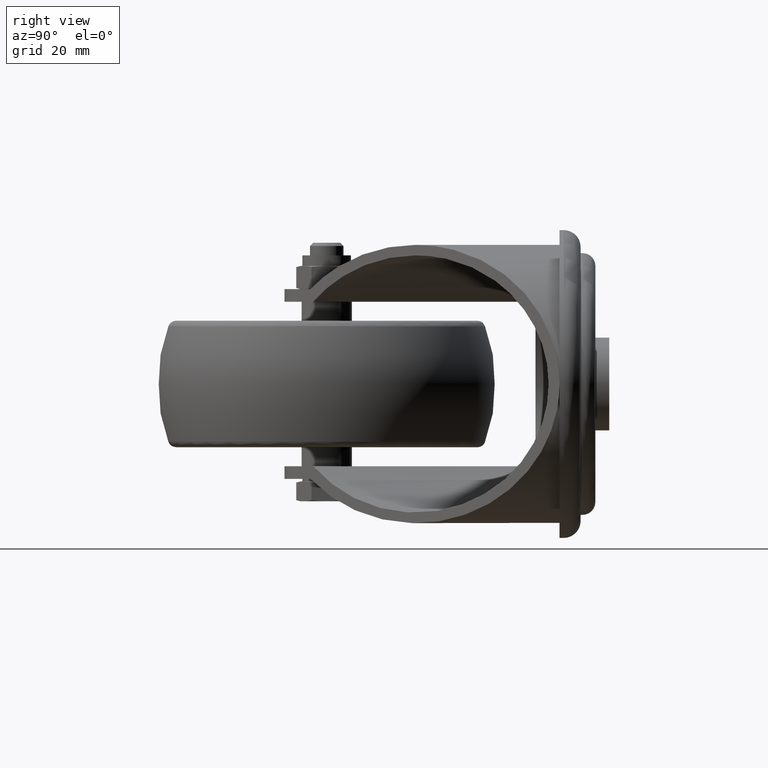
[diagram: clean part render]
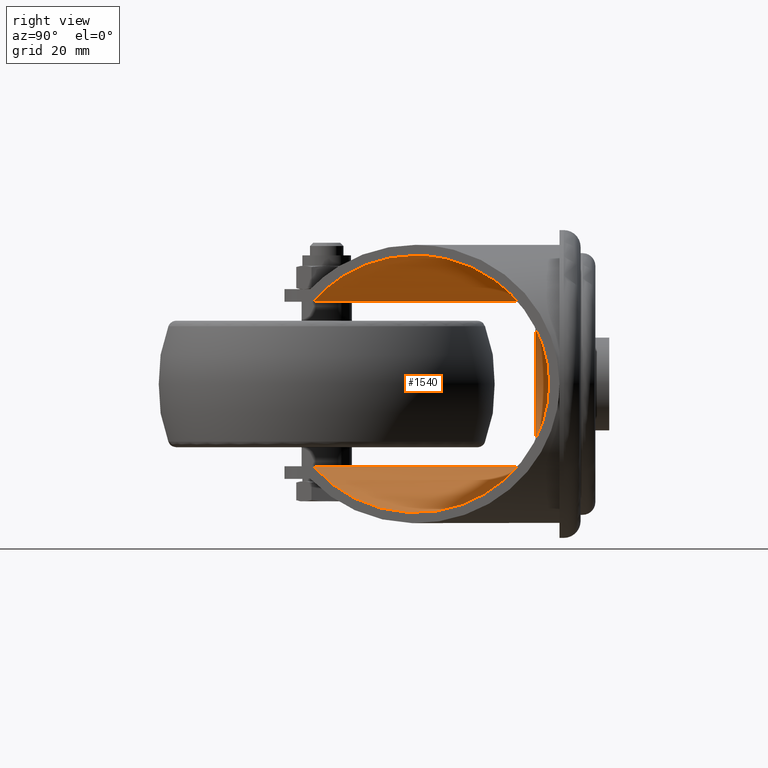
[diagram: same view with one face highlighted and labeled with its STEP entity id]
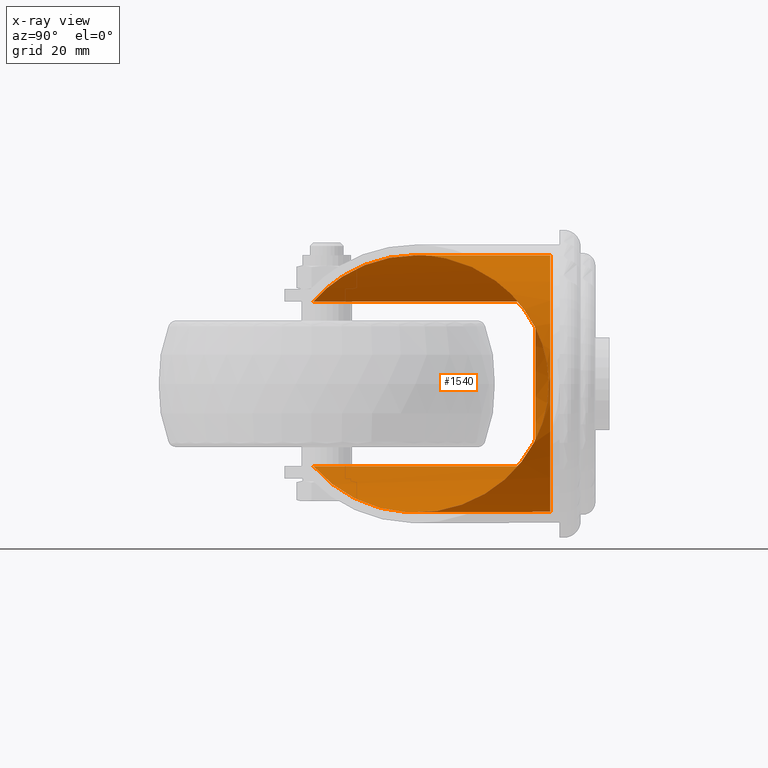
[diagram: x-ray of the same camera — body ghosted, the highlighted face saturated]
A machine part, right view. The second image highlights one B-rep face of the part: STEP entity #1540.
The next image is the same camera in x-ray: the body ghosted, the highlighted face saturated — about 0% of this face is hidden behind the body in this view.
In plain terms, the highlighted cylindrical surface (bore or boss wall) has radius 30.5 mm, axis along (0, -1, 0).
Its self-contained STEP definition (entity closure, byte-faithful):
#221=FACE_OUTER_BOUND('',#327,.T.);
#327=EDGE_LOOP('',(#1102,#1103,#1104,#1105,#1106,#1107,#1108,#1109));
#452=CIRCLE('',#1772,30.5);
#453=CIRCLE('',#1773,30.5);
#550=ELLIPSE('',#1757,43.8715844141241,30.5);
#551=ELLIPSE('',#1758,43.8715844141241,30.5);
#577=LINE('',#2565,#645);
#578=LINE('',#2567,#646);
#579=LINE('',#2570,#647);
#645=VECTOR('',#2048,30.5);
#646=VECTOR('',#2049,1000.);
#647=VECTOR('',#2052,1000.);
#701=VERTEX_POINT('',#2513);
#702=VERTEX_POINT('',#2515);
#703=VERTEX_POINT('',#2517);
#718=VERTEX_POINT('',#2563);
#719=VERTEX_POINT('',#2566);
#720=VERTEX_POINT('',#2568);
#841=EDGE_CURVE('',#701,#702,#550,.F.);
#842=EDGE_CURVE('',#702,#703,#551,.F.);
#866=EDGE_CURVE('',#718,#718,#452,.T.);
#867=EDGE_CURVE('',#718,#702,#577,.T.);
#868=EDGE_CURVE('',#701,#719,#578,.F.);
#869=EDGE_CURVE('',#719,#720,#453,.T.);
#870=EDGE_CURVE('',#720,#703,#579,.T.);
#1102=ORIENTED_EDGE('',*,*,#866,.F.);
#1103=ORIENTED_EDGE('',*,*,#867,.T.);
#1104=ORIENTED_EDGE('',*,*,#841,.F.);
#1105=ORIENTED_EDGE('',*,*,#868,.T.);
#1106=ORIENTED_EDGE('',*,*,#869,.T.);
#1107=ORIENTED_EDGE('',*,*,#870,.T.);
#1108=ORIENTED_EDGE('',*,*,#842,.F.);
#1109=ORIENTED_EDGE('',*,*,#867,.F.);
#1515=CYLINDRICAL_SURFACE('',#1771,30.5);
#1540=ADVANCED_FACE('',(#221),#1515,.F.);
#1757=AXIS2_PLACEMENT_3D('',#2516,#1999,#2000);
#1758=AXIS2_PLACEMENT_3D('',#2518,#2001,#2002);
#1771=AXIS2_PLACEMENT_3D('',#2562,#2044,#2045);
#1772=AXIS2_PLACEMENT_3D('',#2564,#2046,#2047);
#1773=AXIS2_PLACEMENT_3D('',#2569,#2050,#2051);
#1999=DIRECTION('center_axis',(0.718805899606343,-0.695210816005559,0.));
#2000=DIRECTION('ref_axis',(-0.695210816005559,-0.718805899606343,0.));
#2001=DIRECTION('center_axis',(0.718805899606343,-0.695210816005559,0.));
#2002=DIRECTION('ref_axis',(-0.695210816005559,-0.718805899606343,0.));
#2044=DIRECTION('center_axis',(0.,-1.,0.));
#2045=DIRECTION('ref_axis',(0.,0.,-1.));
#2046=DIRECTION('center_axis',(0.,-1.,0.));
#2047=DIRECTION('ref_axis',(0.,0.,-1.));
#2048=DIRECTION('',(0.,-1.,0.));
#2049=DIRECTION('',(0.,-1.,0.));
#2050=DIRECTION('center_axis',(0.,-1.,0.));
#2051=DIRECTION('ref_axis',(0.,0.,-1.));
#2052=DIRECTION('',(0.,-1.,0.));
#2513=CARTESIAN_POINT('',(15.5479212008828,-3.16803218769696,19.5));
#2515=CARTESIAN_POINT('',(39.,21.0799976339556,30.5));
#2516=CARTESIAN_POINT('Origin',(39.,21.0799976339556,0.));
#2517=CARTESIAN_POINT('',(15.5479212008828,-3.16803218769696,-19.5));
#2518=CARTESIAN_POINT('Origin',(39.,21.0799976339556,0.));
#2562=CARTESIAN_POINT('Origin',(39.,-10.,0.));
#2563=CARTESIAN_POINT('',(39.,53.,30.5));
#2564=CARTESIAN_POINT('Origin',(39.,53.,0.));
#2565=CARTESIAN_POINT('',(39.,-10.,30.5));
#2566=CARTESIAN_POINT('',(15.5479212008829,49.5,19.5));
#2567=CARTESIAN_POINT('',(15.5479212008828,-10.,19.5));
#2568=CARTESIAN_POINT('',(15.5479212008829,49.5,-19.5));
#2569=CARTESIAN_POINT('Origin',(39.,49.5,0.));
#2570=CARTESIAN_POINT('',(15.5479212008828,-10.,-19.5));